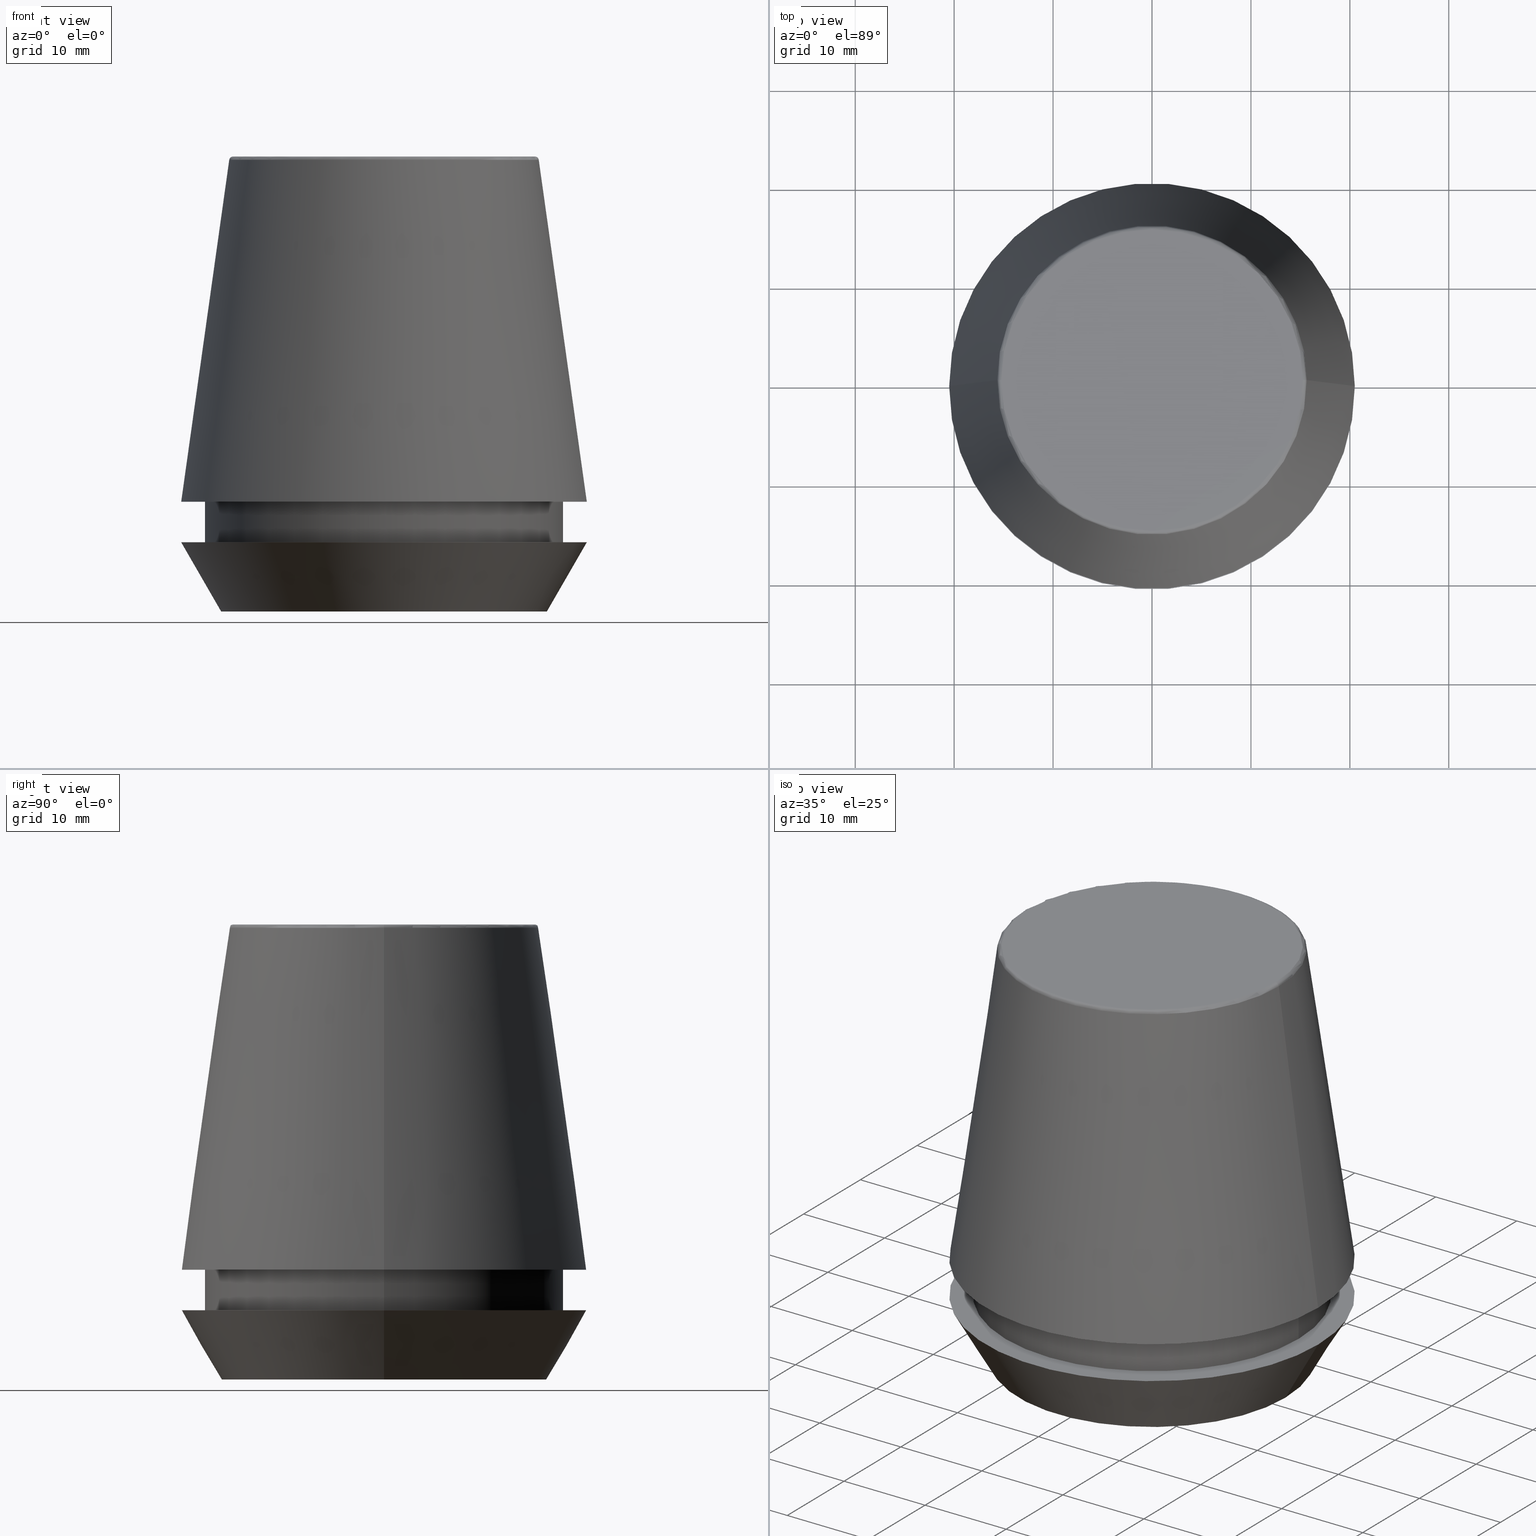
[diagram: canonical four-view strip — front | top / right | iso, engineering-drawing reading convention]
A machine part, canonical four-view strip (front | top / right | iso — engineering-drawing reading convention). The complete STEP part file that produces these views, byte-faithful:
ISO-10303-21;
HEADER;
FILE_DESCRIPTION (( 'STEP AP203' ),
    '1' );
FILE_NAME ('TAP COLLET ER 40G 12.0 X 9.0.STEP',
    '2019-04-10T04:04:46',
    ( '' ),
    ( '' ),
    'SwSTEP 2.0',
    'SolidWorks 2014',
    '' );
FILE_SCHEMA (( 'CONFIG_CONTROL_DESIGN' ));
ENDSEC;

DATA;
#1 = DIRECTION ( 'NONE',  ( 1.000000000000000000, 0.0000000000000000000, 0.0000000000000000000 ) ) ;
#2 = CIRCLE ( 'NONE', #361, 20.50000000000000000 ) ;
#3 = PERSON_AND_ORGANIZATION ( #210, #149 ) ;
#4 = CC_DESIGN_PERSON_AND_ORGANIZATION_ASSIGNMENT ( #11, #199, ( #40 ) ) ;
#5 = CARTESIAN_POINT ( 'NONE',  ( 0.0000000000000000000, 0.0000000000000000000, 0.0000000000000000000 ) ) ;
#6 = CARTESIAN_POINT ( 'NONE',  ( 16.45854811567268100, 0.0000000000000000000, 0.0000000000000000000 ) ) ;
#7 = EDGE_CURVE ( 'NONE', #333, #109, #367, .T. ) ;
#8 = VERTEX_POINT ( 'NONE', #320 ) ;
#9 = ORIENTED_EDGE ( 'NONE', *, *, #365, .F. ) ;
#10 = LINE ( 'NONE', #6, #353 ) ;
#11 = PERSON_AND_ORGANIZATION ( #210, #149 ) ;
#12 = EDGE_LOOP ( 'NONE', ( #285, #319, #337, #382 ) ) ;
#13 = EDGE_CURVE ( 'NONE', #96, #133, #349, .T. ) ;
#14 = FACE_OUTER_BOUND ( 'NONE', #97, .T. ) ;
#15 = CIRCLE ( 'NONE', #350, 20.50032537154048700 ) ;
#16 = EDGE_LOOP ( 'NONE', ( #248, #73, #206, #9 ) ) ;
#17 = CIRCLE ( 'NONE', #71, 16.45854811567268100 ) ;
#18 = CARTESIAN_POINT ( 'NONE',  ( 0.0000000000000000000, 0.0000000000000000000, 6.999999999999999100 ) ) ;
#19 = PLANE ( 'NONE',  #99 ) ;
#20 = DATE_AND_TIME ( #155, #257 ) ;
#21 = ORIENTED_EDGE ( 'NONE', *, *, #53, .T. ) ;
#22 = COORDINATED_UNIVERSAL_TIME_OFFSET ( 5, 30, .AHEAD. ) ;
#23 = FACE_BOUND ( 'NONE', #347, .T. ) ;
#24 = EDGE_LOOP ( 'NONE', ( #363, #298 ) ) ;
#25 = EDGE_CURVE ( 'NONE', #278, #140, #17, .T. ) ;
#26 = EDGE_LOOP ( 'NONE', ( #129, #372 ) ) ;
#27 = APPLICATION_CONTEXT ( 'configuration controlled 3d designs of mechanical parts and assemblies' ) ;
#28 = TOROIDAL_SURFACE ( 'NONE', #143, 15.24773554530077600, 0.3999999999999991900 ) ;
#29 = DIRECTION ( 'NONE',  ( -0.0000000000000000000, -0.0000000000000000000, 1.000000000000000000 ) ) ;
#30 = PRODUCT_DEFINITION ( 'UNKNOWN', '', #154, #82 ) ;
#31 = FACE_OUTER_BOUND ( 'NONE', #61, .T. ) ;
#32 = DIRECTION ( 'NONE',  ( 1.000000000000000000, 0.0000000000000000000, 0.0000000000000000000 ) ) ;
#33 = DIRECTION ( 'NONE',  ( 0.0000000000000000000, 0.0000000000000000000, 1.000000000000000000 ) ) ;
#34 = ORIENTED_EDGE ( 'NONE', *, *, #13, .T. ) ;
#35 = ORIENTED_EDGE ( 'NONE', *, *, #352, .T. ) ;
#36 = FACE_OUTER_BOUND ( 'NONE', #12, .T. ) ;
#37 = ADVANCED_FACE ( 'NONE', ( #66 ), #197, .T. ) ;
#38 = COORDINATED_UNIVERSAL_TIME_OFFSET ( 5, 30, .AHEAD. ) ;
#39 = ORIENTED_EDGE ( 'NONE', *, *, #375, .T. ) ;
#40 = PRODUCT ( 'TAP COLLET ER 40G 12.0 X 9.0', 'TAP COLLET ER 40G 12.0 X 9.0', '', ( #381 ) ) ;
#41 = LINE ( 'NONE', #74, #326 ) ;
#42 = ADVANCED_FACE ( 'NONE', ( #224, #357 ), #245, .F. ) ;
#43 = ADVANCED_FACE ( 'NONE', ( #178 ), #222, .T. ) ;
#44 = DIRECTION ( 'NONE',  ( 1.000000000000000000, 0.0000000000000000000, 0.0000000000000000000 ) ) ;
#45 = CALENDAR_DATE ( 2019, 10, 4 ) ;
#46 = DATE_AND_TIME ( #55, #172 ) ;
#47 = FACE_OUTER_BOUND ( 'NONE', #79, .T. ) ;
#48 = DIRECTION ( 'NONE',  ( 0.0000000000000000000, 0.0000000000000000000, -1.000000000000000000 ) ) ;
#49 = CC_DESIGN_PERSON_AND_ORGANIZATION_ASSIGNMENT ( #92, #87, ( #30 ) ) ;
#50 = AXIS2_PLACEMENT_3D ( 'NONE', #18, #217, #44 ) ;
#51 = APPROVAL_ROLE ( '' ) ;
#52 = DIRECTION ( 'NONE',  ( 0.0000000000000000000, 0.0000000000000000000, -1.000000000000000000 ) ) ;
#53 = EDGE_CURVE ( 'NONE', #109, #356, #163, .T. ) ;
#54 = APPROVAL_STATUS ( 'not_yet_approved' ) ;
#55 = CALENDAR_DATE ( 2019, 10, 4 ) ;
#56 = ORIENTED_EDGE ( 'NONE', *, *, #375, .F. ) ;
#57 = DIRECTION ( 'NONE',  ( -0.4999999999999941700, 6.123233995736694500E-017, 0.8660254037844420400 ) ) ;
#58 = AXIS2_PLACEMENT_3D ( 'NONE', #156, #354, #236 ) ;
#59 = CARTESIAN_POINT ( 'NONE',  ( -18.10000000000000500, 2.216610706456710000E-015, 46.00000000000000000 ) ) ;
#60 = ORIENTED_EDGE ( 'NONE', *, *, #240, .F. ) ;
#61 = EDGE_LOOP ( 'NONE', ( #116, #218, #21, #213 ) ) ;
#62 = DIRECTION ( 'NONE',  ( -0.0000000000000000000, -0.0000000000000000000, 1.000000000000000000 ) ) ;
#63 = EDGE_CURVE ( 'NONE', #247, #373, #208, .T. ) ;
#64 = ORIENTED_EDGE ( 'NONE', *, *, #7, .F. ) ;
#65 = EDGE_LOOP ( 'NONE', ( #306, #64, #239, #279 ) ) ;
#66 = FACE_OUTER_BOUND ( 'NONE', #65, .T. ) ;
#67 = CC_DESIGN_DATE_AND_TIME_ASSIGNMENT ( #318, #282, ( #30 ) ) ;
#68 = FACE_OUTER_BOUND ( 'NONE', #182, .T. ) ;
#69 = CIRCLE ( 'NONE', #80, 16.45854811567268100 ) ;
#70 = DIRECTION ( 'NONE',  ( 1.000000000000000000, 0.0000000000000000000, 0.0000000000000000000 ) ) ;
#71 = AXIS2_PLACEMENT_3D ( 'NONE', #5, #205, #32 ) ;
#72 = CYLINDRICAL_SURFACE ( 'NONE', #300, 18.10000000000000500 ) ;
#73 = ORIENTED_EDGE ( 'NONE', *, *, #280, .T. ) ;
#74 = CARTESIAN_POINT ( 'NONE',  ( -20.50032537154048700, 0.0000000000000000000, 11.09999999999999800 ) ) ;
#75 = ADVANCED_FACE ( 'NONE', ( #291 ), #19, .F. ) ;
#76 = AXIS2_PLACEMENT_3D ( 'NONE', #168, #329, #70 ) ;
#77 = CARTESIAN_POINT ( 'NONE',  ( 0.0000000000000000000, 0.0000000000000000000, 45.60000000000000100 ) ) ;
#78 = AXIS2_PLACEMENT_3D ( 'NONE', #294, #130, #325 ) ;
#79 = EDGE_LOOP ( 'NONE', ( #187, #170 ) ) ;
#80 = AXIS2_PLACEMENT_3D ( 'NONE', #296, #136, #327 ) ;
#81 = DIRECTION ( 'NONE',  ( 1.000000000000000000, 0.0000000000000000000, 0.0000000000000000000 ) ) ;
#82 = DESIGN_CONTEXT ( 'detailed design', #27, 'design' ) ;
#83 = CIRCLE ( 'NONE', #331, 20.50000000000000000 ) ;
#84 = AXIS2_PLACEMENT_3D ( 'NONE', #202, #351, #183 ) ;
#85 = VECTOR ( 'NONE', #263, 1000.000000000000000 ) ;
#86 = ORIENTED_EDGE ( 'NONE', *, *, #240, .T. ) ;
#87 = PERSON_AND_ORGANIZATION_ROLE ( 'creator' ) ;
#88 = CARTESIAN_POINT ( 'NONE',  ( 0.0000000000000000000, 0.0000000000000000000, 46.00000000000000000 ) ) ;
#89 = SHAPE_DEFINITION_REPRESENTATION ( #253, #215 ) ;
#90 = CIRCLE ( 'NONE', #137, 20.50032537154048700 ) ;
#91 = CARTESIAN_POINT ( 'NONE',  ( -18.10000000000000100, 2.216610706456709600E-015, 6.999999999999999100 ) ) ;
#92 = PERSON_AND_ORGANIZATION ( #210, #149 ) ;
#93 = ORIENTED_EDGE ( 'NONE', *, *, #127, .F. ) ;
#94 = AXIS2_PLACEMENT_3D ( 'NONE', #146, #228, #312 ) ;
#95 = CARTESIAN_POINT ( 'NONE',  ( 0.0000000000000000000, 0.0000000000000000000, 7.000000000000006200 ) ) ;
#96 = VERTEX_POINT ( 'NONE', #174 ) ;
#97 = EDGE_LOOP ( 'NONE', ( #370, #93 ) ) ;
#98 = EDGE_LOOP ( 'NONE', ( #364, #186, #252, #106 ) ) ;
#99 = AXIS2_PLACEMENT_3D ( 'NONE', #220, #48, #251 ) ;
#100 = EDGE_LOOP ( 'NONE', ( #35, #39 ) ) ;
#101 = CC_DESIGN_SECURITY_CLASSIFICATION ( #120, ( #154 ) ) ;
#102 = DIRECTION ( 'NONE',  ( 0.0000000000000000000, 0.0000000000000000000, -1.000000000000000000 ) ) ;
#103 = ADVANCED_FACE ( 'NONE', ( #36 ), #314, .T. ) ;
#104 = VECTOR ( 'NONE', #322, 1000.000000000000000 ) ;
#105 = AXIS2_PLACEMENT_3D ( 'NONE', #196, #204, #374 ) ;
#106 = ORIENTED_EDGE ( 'NONE', *, *, #339, .F. ) ;
#107 = DIRECTION ( 'NONE',  ( -0.0000000000000000000, -0.0000000000000000000, 1.000000000000000000 ) ) ;
#108 = DIRECTION ( 'NONE',  ( -0.0000000000000000000, -0.0000000000000000000, 1.000000000000000000 ) ) ;
#109 = VERTEX_POINT ( 'NONE', #378 ) ;
#110 = CC_DESIGN_APPROVAL ( #135, ( #30 ) ) ;
#111 = EDGE_CURVE ( 'NONE', #140, #278, #69, .T. ) ;
#112 = CARTESIAN_POINT ( 'NONE',  ( 0.0000000000000000000, 0.0000000000000000000, 46.00000000000000000 ) ) ;
#113 = APPLICATION_CONTEXT ( 'configuration controlled 3d designs of mechanical parts and assemblies' ) ;
#114 = APPROVAL_STATUS ( 'not_yet_approved' ) ;
#115 = DIRECTION ( 'NONE',  ( 1.000000000000000000, 0.0000000000000000000, 0.0000000000000000000 ) ) ;
#116 = ORIENTED_EDGE ( 'NONE', *, *, #216, .F. ) ;
#117 = AXIS2_PLACEMENT_3D ( 'NONE', #88, #283, #115 ) ;
#118 = APPROVAL_DATE_TIME ( #270, #135 ) ;
#119 = CIRCLE ( 'NONE', #78, 0.3999999999999975800 ) ;
#120 = SECURITY_CLASSIFICATION ( '', '', #179 ) ;
#121 = CARTESIAN_POINT ( 'NONE',  ( 0.0000000000000000000, 0.0000000000000000000, 45.65566924038402900 ) ) ;
#122 = CARTESIAN_POINT ( 'NONE',  ( 20.50032537154048700, 2.510565784773633700E-015, 11.09999999999999800 ) ) ;
#123 = FACE_OUTER_BOUND ( 'NONE', #98, .T. ) ;
#124 = DIRECTION ( 'NONE',  ( -0.0000000000000000000, -0.0000000000000000000, 1.000000000000000000 ) ) ;
#125 = DIRECTION ( 'NONE',  ( 1.000000000000000000, 0.0000000000000000000, 0.0000000000000000000 ) ) ;
#126 = LINE ( 'NONE', #59, #85 ) ;
#127 = EDGE_CURVE ( 'NONE', #261, #8, #90, .T. ) ;
#128 = FACE_OUTER_BOUND ( 'NONE', #16, .T. ) ;
#129 = ORIENTED_EDGE ( 'NONE', *, *, #328, .T. ) ;
#130 = DIRECTION ( 'NONE',  ( 1.224646799147353200E-016, 1.000000000000000000, 0.0000000000000000000 ) ) ;
#131 = ADVANCED_FACE ( 'NONE', ( #128 ), #134, .T. ) ;
#132 = CC_DESIGN_DATE_AND_TIME_ASSIGNMENT ( #46, #200, ( #120 ) ) ;
#133 = VERTEX_POINT ( 'NONE', #313 ) ;
#134 = CYLINDRICAL_SURFACE ( 'NONE', #192, 18.10000000000000500 ) ;
#135 = APPROVAL ( #54, 'UNSPECIFIED' ) ;
#136 = DIRECTION ( 'NONE',  ( -0.0000000000000000000, -0.0000000000000000000, 1.000000000000000000 ) ) ;
#137 = AXIS2_PLACEMENT_3D ( 'NONE', #193, #256, #81 ) ;
#138 = DIRECTION ( 'NONE',  ( -0.1391731009600587200, 0.0000000000000000000, -0.9902680687415712500 ) ) ;
#139 = CARTESIAN_POINT ( 'NONE',  ( 18.10000000000000500, 0.0000000000000000000, 46.00000000000000000 ) ) ;
#140 = VERTEX_POINT ( 'NONE', #147 ) ;
#141 = ADVANCED_FACE ( 'NONE', ( #68 ), #72, .T. ) ;
#142 = EDGE_CURVE ( 'NONE', #332, #356, #145, .T. ) ;
#143 = AXIS2_PLACEMENT_3D ( 'NONE', #241, #207, #262 ) ;
#144 = DIRECTION ( 'NONE',  ( 0.0000000000000000000, -1.000000000000000000, 0.0000000000000000000 ) ) ;
#145 = CIRCLE ( 'NONE', #117, 15.24773554530077600 ) ;
#146 = CARTESIAN_POINT ( 'NONE',  ( 0.0000000000000000000, 0.0000000000000000000, 0.0000000000000000000 ) ) ;
#147 = CARTESIAN_POINT ( 'NONE',  ( -16.45854811567268100, 2.263058382549599700E-015, 0.0000000000000000000 ) ) ;
#148 = AXIS2_PLACEMENT_3D ( 'NONE', #292, #124, #321 ) ;
#149 = ORGANIZATION ( 'UNSPECIFIED', 'UNSPECIFIED', '' ) ;
#150 = PERSON_AND_ORGANIZATION_ROLE ( 'creator' ) ;
#151 = DIRECTION ( 'NONE',  ( 0.0000000000000000000, -0.0000000000000000000, 1.000000000000000000 ) ) ;
#152 = CC_DESIGN_APPROVAL ( #162, ( #120 ) ) ;
#153 = CARTESIAN_POINT ( 'NONE',  ( 16.45854811567268100, 0.0000000000000000000, 0.0000000000000000000 ) ) ;
#154 = PRODUCT_DEFINITION_FORMATION_WITH_SPECIFIED_SOURCE ( 'ANY', '', #40, .NOT_KNOWN. ) ;
#155 = CALENDAR_DATE ( 2019, 10, 4 ) ;
#156 = CARTESIAN_POINT ( 'NONE',  ( 0.0000000000000000000, 0.0000000000000000000, 11.09999999999999800 ) ) ;
#157 = DIRECTION ( 'NONE',  ( 0.4999999999999941700, 0.0000000000000000000, 0.8660254037844420400 ) ) ;
#158 = ADVANCED_FACE ( 'NONE', ( #47 ), #231, .F. ) ;
#159 =( NAMED_UNIT ( * ) PLANE_ANGLE_UNIT ( ) SI_UNIT ( $, .RADIAN. ) );
#160 = CARTESIAN_POINT ( 'NONE',  ( 0.0000000000000000000, 20.50032537154048700, 11.09999999999999800 ) ) ;
#161 = APPROVAL ( #114, 'UNSPECIFIED' ) ;
#162 = APPROVAL ( #227, 'UNSPECIFIED' ) ;
#163 = CIRCLE ( 'NONE', #233, 0.3999999999999975800 ) ;
#164 = CIRCLE ( 'NONE', #50, 18.10000000000000100 ) ;
#165 = AXIS2_PLACEMENT_3D ( 'NONE', #276, #259, #348 ) ;
#166 = CARTESIAN_POINT ( 'NONE',  ( 0.0000000000000000000, 0.0000000000000000000, 46.00000000000000000 ) ) ;
#167 = PERSON_AND_ORGANIZATION ( #210, #149 ) ;
#168 = CARTESIAN_POINT ( 'NONE',  ( 0.0000000000000000000, 0.0000000000000000000, 0.0000000000000000000 ) ) ;
#169 = CC_DESIGN_PERSON_AND_ORGANIZATION_ASSIGNMENT ( #386, #150, ( #154 ) ) ;
#170 = ORIENTED_EDGE ( 'NONE', *, *, #111, .F. ) ;
#171 = PERSON_AND_ORGANIZATION ( #210, #149 ) ;
#172 = LOCAL_TIME ( 9, 34, 46.00000000000000000, #22 ) ;
#173 = LOCAL_TIME ( 9, 34, 46.00000000000000000, #275 ) ;
#174 = CARTESIAN_POINT ( 'NONE',  ( 18.10000000000000500, 0.0000000000000000000, 11.09999999999999800 ) ) ;
#175 = CC_DESIGN_PERSON_AND_ORGANIZATION_ASSIGNMENT ( #260, #346, ( #154 ) ) ;
#176 = DIRECTION ( 'NONE',  ( 1.000000000000000000, 0.0000000000000000000, 0.0000000000000000000 ) ) ;
#177 = APPLICATION_PROTOCOL_DEFINITION ( 'international standard', 'config_control_design', 1994, #113 ) ;
#178 = FACE_OUTER_BOUND ( 'NONE', #376, .T. ) ;
#179 = SECURITY_CLASSIFICATION_LEVEL ( 'unclassified' ) ;
#180 = CC_DESIGN_APPROVAL ( #161, ( #154 ) ) ;
#181 = CARTESIAN_POINT ( 'NONE',  ( -16.45854811567268100, 2.015590826847124800E-015, 0.0000000000000000000 ) ) ;
#182 = EDGE_LOOP ( 'NONE', ( #305, #338, #226, #60 ) ) ;
#183 = DIRECTION ( 'NONE',  ( 1.000000000000000000, 0.0000000000000000000, 0.0000000000000000000 ) ) ;
#184 = ADVANCED_FACE ( 'NONE', ( #123 ), #323, .T. ) ;
#185 = CARTESIAN_POINT ( 'NONE',  ( 18.10000000000000100, 0.0000000000000000000, 6.999999999999999100 ) ) ;
#186 = ORIENTED_EDGE ( 'NONE', *, *, #295, .T. ) ;
#187 = ORIENTED_EDGE ( 'NONE', *, *, #25, .F. ) ;
#188 = ORIENTED_EDGE ( 'NONE', *, *, #111, .T. ) ;
#189 = EDGE_CURVE ( 'NONE', #109, #333, #334, .T. ) ;
#190 = DIRECTION ( 'NONE',  ( 1.000000000000000000, 0.0000000000000000000, 0.0000000000000000000 ) ) ;
#191 = ORIENTED_EDGE ( 'NONE', *, *, #377, .T. ) ;
#192 = AXIS2_PLACEMENT_3D ( 'NONE', #166, #366, #281 ) ;
#193 = CARTESIAN_POINT ( 'NONE',  ( 0.0000000000000000000, 0.0000000000000000000, 11.09999999999999800 ) ) ;
#194 = APPROVAL_PERSON_ORGANIZATION ( #167, #161, #315 ) ;
#195 = ORIENTED_EDGE ( 'NONE', *, *, #25, .T. ) ;
#196 = CARTESIAN_POINT ( 'NONE',  ( 0.0000000000000000000, 0.0000000000000000000, 6.999999999999999100 ) ) ;
#197 = CONICAL_SURFACE ( 'NONE', #58, 20.50032537154048700, 0.1396263401595396200 ) ;
#198 = DIRECTION ( 'NONE',  ( 1.000000000000000000, 0.0000000000000000000, 0.0000000000000000000 ) ) ;
#199 = PERSON_AND_ORGANIZATION_ROLE ( 'design_owner' ) ;
#200 = DATE_TIME_ROLE ( 'classification_date' ) ;
#201 = LINE ( 'NONE', #290, #284 ) ;
#202 = CARTESIAN_POINT ( 'NONE',  ( 0.0000000000000000000, 0.0000000000000000000, 11.09999999999999800 ) ) ;
#203 = CARTESIAN_POINT ( 'NONE',  ( 0.0000000000000000000, 0.0000000000000000000, 11.09999999999999800 ) ) ;
#204 = DIRECTION ( 'NONE',  ( -0.0000000000000000000, -0.0000000000000000000, 1.000000000000000000 ) ) ;
#205 = DIRECTION ( 'NONE',  ( -0.0000000000000000000, -0.0000000000000000000, 1.000000000000000000 ) ) ;
#206 = ORIENTED_EDGE ( 'NONE', *, *, #13, .F. ) ;
#207 = DIRECTION ( 'NONE',  ( -0.0000000000000000000, -0.0000000000000000000, 1.000000000000000000 ) ) ;
#208 = CIRCLE ( 'NONE', #105, 18.10000000000000100 ) ;
#209 = MANIFOLD_SOLID_BREP ( 'Revolve1', #219 ) ;
#210 = PERSON ( 'UNSPECIFIED', 'UNSPECIFIED', 'UNSPECIFIED', ('UNSPECIFIED'), ('UNSPECIFIED'), ('UNSPECIFIED') ) ;
#211 = CC_DESIGN_PERSON_AND_ORGANIZATION_ASSIGNMENT ( #171, #383, ( #120 ) ) ;
#212 = ADVANCED_FACE ( 'NONE', ( #264 ), #301, .T. ) ;
#213 = ORIENTED_EDGE ( 'NONE', *, *, #142, .F. ) ;
#214 = EDGE_CURVE ( 'NONE', #140, #271, #255, .T. ) ;
#215 = ADVANCED_BREP_SHAPE_REPRESENTATION ( 'TAP COLLET ER 40G 12.0 X 9.0', ( #209, #342 ), #268 ) ;
#216 = EDGE_CURVE ( 'NONE', #333, #332, #119, .T. ) ;
#217 = DIRECTION ( 'NONE',  ( -0.0000000000000000000, -0.0000000000000000000, 1.000000000000000000 ) ) ;
#218 = ORIENTED_EDGE ( 'NONE', *, *, #7, .T. ) ;
#219 = CLOSED_SHELL ( 'NONE', ( #103, #184, #131, #212, #158, #43, #42, #141, #221, #37, #225, #75 ) ) ;
#220 = CARTESIAN_POINT ( 'NONE',  ( 0.0000000000000000000, 15.24773554530077600, 46.00000000000000000 ) ) ;
#221 = ADVANCED_FACE ( 'NONE', ( #14, #23 ), #385, .F. ) ;
#222 = CONICAL_SURFACE ( 'NONE', #76, 16.45854811567268100, 0.5235987755982921500 ) ;
#223 = EDGE_CURVE ( 'NONE', #8, #261, #15, .T. ) ;
#224 = FACE_BOUND ( 'NONE', #24, .T. ) ;
#225 = ADVANCED_FACE ( 'NONE', ( #31 ), #28, .T. ) ;
#226 = ORIENTED_EDGE ( 'NONE', *, *, #365, .T. ) ;
#227 = APPROVAL_STATUS ( 'not_yet_approved' ) ;
#228 = DIRECTION ( 'NONE',  ( -0.0000000000000000000, -0.0000000000000000000, 1.000000000000000000 ) ) ;
#229 = APPLICATION_PROTOCOL_DEFINITION ( 'international standard', 'config_control_design', 1994, #27 ) ;
#230 = DATE_AND_TIME ( #45, #244 ) ;
#231 = PLANE ( 'NONE',  #277 ) ;
#232 = UNCERTAINTY_MEASURE_WITH_UNIT (LENGTH_MEASURE( 1.000000000000000100E-005 ), #324, 'distance_accuracy_value', 'NONE');
#233 = AXIS2_PLACEMENT_3D ( 'NONE', #311, #144, #340 ) ;
#234 = DIRECTION ( 'NONE',  ( 1.000000000000000000, 0.0000000000000000000, 0.0000000000000000000 ) ) ;
#235 = DIRECTION ( 'NONE',  ( 0.1391731009600587200, 1.704378926181473400E-017, -0.9902680687415712500 ) ) ;
#236 = DIRECTION ( 'NONE',  ( -1.000000000000000000, 0.0000000000000000000, 0.0000000000000000000 ) ) ;
#237 = CARTESIAN_POINT ( 'NONE',  ( 0.0000000000000000000, 0.0000000000000000000, 7.000000000000006200 ) ) ;
#238 = AXIS2_PLACEMENT_3D ( 'NONE', #160, #359, #190 ) ;
#239 = ORIENTED_EDGE ( 'NONE', *, *, #339, .T. ) ;
#240 = EDGE_CURVE ( 'NONE', #133, #96, #368, .T. ) ;
#241 = CARTESIAN_POINT ( 'NONE',  ( 0.0000000000000000000, 0.0000000000000000000, 45.60000000000000100 ) ) ;
#242 = PERSON_AND_ORGANIZATION ( #210, #149 ) ;
#243 = APPROVAL_PERSON_ORGANIZATION ( #242, #162, #51 ) ;
#244 = LOCAL_TIME ( 9, 34, 46.00000000000000000, #38 ) ;
#245 = PLANE ( 'NONE',  #273 ) ;
#246 = CALENDAR_DATE ( 2019, 10, 4 ) ;
#247 = VERTEX_POINT ( 'NONE', #91 ) ;
#248 = ORIENTED_EDGE ( 'NONE', *, *, #289, .T. ) ;
#249 = CARTESIAN_POINT ( 'NONE',  ( 20.50000000000000000, 0.0000000000000000000, 7.000000000000006200 ) ) ;
#250 = AXIS2_PLACEMENT_3D ( 'NONE', #77, #108, #309 ) ;
#251 = DIRECTION ( 'NONE',  ( -1.000000000000000000, 0.0000000000000000000, -0.0000000000000000000 ) ) ;
#252 = ORIENTED_EDGE ( 'NONE', *, *, #127, .T. ) ;
#253 = PRODUCT_DEFINITION_SHAPE ( 'NONE', 'NONE',  #30 ) ;
#254 = DIRECTION ( 'NONE',  ( -1.000000000000000000, 0.0000000000000000000, 0.0000000000000000000 ) ) ;
#255 = LINE ( 'NONE', #181, #302 ) ;
#256 = DIRECTION ( 'NONE',  ( -0.0000000000000000000, -0.0000000000000000000, 1.000000000000000000 ) ) ;
#257 = LOCAL_TIME ( 9, 34, 46.00000000000000000, #379 ) ;
#258 = APPROVAL_ROLE ( '' ) ;
#259 = DIRECTION ( 'NONE',  ( -0.0000000000000000000, -0.0000000000000000000, 1.000000000000000000 ) ) ;
#260 = PERSON_AND_ORGANIZATION ( #210, #149 ) ;
#261 = VERTEX_POINT ( 'NONE', #122 ) ;
#262 = DIRECTION ( 'NONE',  ( 1.000000000000000000, 0.0000000000000000000, 0.0000000000000000000 ) ) ;
#263 = DIRECTION ( 'NONE',  ( -0.0000000000000000000, -0.0000000000000000000, 1.000000000000000000 ) ) ;
#264 = FACE_OUTER_BOUND ( 'NONE', #335, .T. ) ;
#265 = DIRECTION ( 'NONE',  ( 1.000000000000000000, 0.0000000000000000000, 0.0000000000000000000 ) ) ;
#266 = APPROVAL_PERSON_ORGANIZATION ( #3, #135, #258 ) ;
#267 = LINE ( 'NONE', #139, #104 ) ;
#268 =( GEOMETRIC_REPRESENTATION_CONTEXT ( 3 ) GLOBAL_UNCERTAINTY_ASSIGNED_CONTEXT ( ( #232 ) ) GLOBAL_UNIT_ASSIGNED_CONTEXT ( ( #324, #159, #358 ) ) REPRESENTATION_CONTEXT ( 'NONE', 'WORKASPACE' ) );
#269 = CARTESIAN_POINT ( 'NONE',  ( 0.0000000000000000000, 20.50000000000000000, 7.000000000000002700 ) ) ;
#270 = DATE_AND_TIME ( #246, #362 ) ;
#271 = VERTEX_POINT ( 'NONE', #287 ) ;
#272 = CARTESIAN_POINT ( 'NONE',  ( 0.0000000000000000000, 0.0000000000000000000, 46.00000000000000000 ) ) ;
#273 = AXIS2_PLACEMENT_3D ( 'NONE', #269, #102, #299 ) ;
#274 = CARTESIAN_POINT ( 'NONE',  ( -15.24773554530077600, 1.891563625393435400E-015, 46.00000000000000000 ) ) ;
#275 = COORDINATED_UNIVERSAL_TIME_OFFSET ( 5, 30, .AHEAD. ) ;
#276 = CARTESIAN_POINT ( 'NONE',  ( 0.0000000000000000000, 0.0000000000000000000, 45.65566924038402900 ) ) ;
#277 = AXIS2_PLACEMENT_3D ( 'NONE', #316, #151, #176 ) ;
#278 = VERTEX_POINT ( 'NONE', #153 ) ;
#279 = ORIENTED_EDGE ( 'NONE', *, *, #223, .T. ) ;
#280 = EDGE_CURVE ( 'NONE', #247, #133, #126, .T. ) ;
#281 = DIRECTION ( 'NONE',  ( 1.000000000000000000, 0.0000000000000000000, 0.0000000000000000000 ) ) ;
#282 = DATE_TIME_ROLE ( 'creation_date' ) ;
#283 = DIRECTION ( 'NONE',  ( -0.0000000000000000000, -0.0000000000000000000, 1.000000000000000000 ) ) ;
#284 = VECTOR ( 'NONE', #235, 1000.000000000000000 ) ;
#285 = ORIENTED_EDGE ( 'NONE', *, *, #189, .T. ) ;
#286 = DIRECTION ( 'NONE',  ( -0.0000000000000000000, -0.0000000000000000000, 1.000000000000000000 ) ) ;
#287 = CARTESIAN_POINT ( 'NONE',  ( -20.50000000000000000, 2.510525938252074100E-015, 7.000000000000006200 ) ) ;
#288 = COORDINATED_UNIVERSAL_TIME_OFFSET ( 5, 30, .AHEAD. ) ;
#289 = EDGE_CURVE ( 'NONE', #373, #247, #164, .T. ) ;
#290 = CARTESIAN_POINT ( 'NONE',  ( 20.50032537154048700, 2.510565784773633700E-015, 11.09999999999999800 ) ) ;
#291 = FACE_OUTER_BOUND ( 'NONE', #26, .T. ) ;
#292 = CARTESIAN_POINT ( 'NONE',  ( 0.0000000000000000000, 0.0000000000000000000, 11.09999999999999800 ) ) ;
#293 = DIRECTION ( 'NONE',  ( -0.0000000000000000000, -0.0000000000000000000, 1.000000000000000000 ) ) ;
#294 = CARTESIAN_POINT ( 'NONE',  ( -15.24773554530077600, 1.867309052979791600E-015, 45.60000000000000100 ) ) ;
#295 = EDGE_CURVE ( 'NONE', #109, #261, #201, .T. ) ;
#296 = CARTESIAN_POINT ( 'NONE',  ( 0.0000000000000000000, 0.0000000000000000000, 0.0000000000000000000 ) ) ;
#297 = CALENDAR_DATE ( 2019, 10, 4 ) ;
#298 = ORIENTED_EDGE ( 'NONE', *, *, #63, .F. ) ;
#299 = DIRECTION ( 'NONE',  ( -1.000000000000000000, 0.0000000000000000000, -0.0000000000000000000 ) ) ;
#300 = AXIS2_PLACEMENT_3D ( 'NONE', #112, #344, #198 ) ;
#301 = CONICAL_SURFACE ( 'NONE', #94, 16.45854811567268100, 0.5235987755982921500 ) ;
#302 = VECTOR ( 'NONE', #57, 1000.000000000000000 ) ;
#303 = DIRECTION ( 'NONE',  ( 1.000000000000000000, 0.0000000000000000000, 0.0000000000000000000 ) ) ;
#304 = VERTEX_POINT ( 'NONE', #249 ) ;
#305 = ORIENTED_EDGE ( 'NONE', *, *, #280, .F. ) ;
#306 = ORIENTED_EDGE ( 'NONE', *, *, #295, .F. ) ;
#307 = CARTESIAN_POINT ( 'NONE',  ( -15.64384277279740400, 0.0000000000000000000, 45.65566924038402900 ) ) ;
#308 = AXIS2_PLACEMENT_3D ( 'NONE', #369, #52, #254 ) ;
#309 = DIRECTION ( 'NONE',  ( 1.000000000000000000, 0.0000000000000000000, 0.0000000000000000000 ) ) ;
#310 = APPROVAL_DATE_TIME ( #20, #161 ) ;
#311 = CARTESIAN_POINT ( 'NONE',  ( 15.24773554530077600, 0.0000000000000000000, 45.60000000000000100 ) ) ;
#312 = DIRECTION ( 'NONE',  ( 1.000000000000000000, 0.0000000000000000000, 0.0000000000000000000 ) ) ;
#313 = CARTESIAN_POINT ( 'NONE',  ( -18.10000000000000500, 2.216610706456710000E-015, 11.09999999999999800 ) ) ;
#314 = TOROIDAL_SURFACE ( 'NONE', #250, 15.24773554530077600, 0.3999999999999991900 ) ;
#315 = APPROVAL_ROLE ( '' ) ;
#316 = CARTESIAN_POINT ( 'NONE',  ( 0.0000000000000000000, 0.0000000000000000000, 0.0000000000000000000 ) ) ;
#317 = AXIS2_PLACEMENT_3D ( 'NONE', #121, #286, #1 ) ;
#318 = DATE_AND_TIME ( #297, #173 ) ;
#319 = ORIENTED_EDGE ( 'NONE', *, *, #216, .T. ) ;
#320 = CARTESIAN_POINT ( 'NONE',  ( -20.50032537154048700, 0.0000000000000000000, 11.09999999999999800 ) ) ;
#321 = DIRECTION ( 'NONE',  ( 1.000000000000000000, 0.0000000000000000000, 0.0000000000000000000 ) ) ;
#322 = DIRECTION ( 'NONE',  ( -0.0000000000000000000, -0.0000000000000000000, 1.000000000000000000 ) ) ;
#323 = CONICAL_SURFACE ( 'NONE', #308, 20.50032537154048700, 0.1396263401595396200 ) ;
#324 =( LENGTH_UNIT ( ) NAMED_UNIT ( * ) SI_UNIT ( .MILLI., .METRE. ) );
#325 = DIRECTION ( 'NONE',  ( -1.000000000000000000, 1.224646799147353900E-016, 0.0000000000000000000 ) ) ;
#326 = VECTOR ( 'NONE', #138, 1000.000000000000000 ) ;
#327 = DIRECTION ( 'NONE',  ( 1.000000000000000000, 0.0000000000000000000, 0.0000000000000000000 ) ) ;
#328 = EDGE_CURVE ( 'NONE', #356, #332, #330, .T. ) ;
#329 = DIRECTION ( 'NONE',  ( -0.0000000000000000000, -0.0000000000000000000, 1.000000000000000000 ) ) ;
#330 = CIRCLE ( 'NONE', #384, 15.24773554530077600 ) ;
#331 = AXIS2_PLACEMENT_3D ( 'NONE', #237, #62, #265 ) ;
#332 = VERTEX_POINT ( 'NONE', #274 ) ;
#333 = VERTEX_POINT ( 'NONE', #307 ) ;
#334 = CIRCLE ( 'NONE', #165, 15.64384277279740400 ) ;
#335 = EDGE_LOOP ( 'NONE', ( #195, #360, #336, #343 ) ) ;
#336 = ORIENTED_EDGE ( 'NONE', *, *, #352, .F. ) ;
#337 = ORIENTED_EDGE ( 'NONE', *, *, #328, .F. ) ;
#338 = ORIENTED_EDGE ( 'NONE', *, *, #63, .T. ) ;
#339 = EDGE_CURVE ( 'NONE', #333, #8, #41, .T. ) ;
#340 = DIRECTION ( 'NONE',  ( 0.0000000000000000000, 0.0000000000000000000, -1.000000000000000000 ) ) ;
#341 = APPROVAL_DATE_TIME ( #230, #162 ) ;
#342 = AXIS2_PLACEMENT_3D ( 'NONE', #355, #33, #345 ) ;
#343 = ORIENTED_EDGE ( 'NONE', *, *, #377, .F. ) ;
#344 = DIRECTION ( 'NONE',  ( -0.0000000000000000000, -0.0000000000000000000, 1.000000000000000000 ) ) ;
#345 = DIRECTION ( 'NONE',  ( 1.000000000000000000, 0.0000000000000000000, 0.0000000000000000000 ) ) ;
#346 = PERSON_AND_ORGANIZATION_ROLE ( 'design_supplier' ) ;
#347 = EDGE_LOOP ( 'NONE', ( #34, #86 ) ) ;
#348 = DIRECTION ( 'NONE',  ( 1.000000000000000000, 0.0000000000000000000, 0.0000000000000000000 ) ) ;
#349 = CIRCLE ( 'NONE', #148, 18.10000000000000500 ) ;
#350 = AXIS2_PLACEMENT_3D ( 'NONE', #203, #29, #234 ) ;
#351 = DIRECTION ( 'NONE',  ( -0.0000000000000000000, -0.0000000000000000000, 1.000000000000000000 ) ) ;
#352 = EDGE_CURVE ( 'NONE', #304, #271, #2, .T. ) ;
#353 = VECTOR ( 'NONE', #157, 1000.000000000000000 ) ;
#354 = DIRECTION ( 'NONE',  ( 0.0000000000000000000, 0.0000000000000000000, -1.000000000000000000 ) ) ;
#355 = CARTESIAN_POINT ( 'NONE',  ( 0.0000000000000000000, 0.0000000000000000000, 0.0000000000000000000 ) ) ;
#356 = VERTEX_POINT ( 'NONE', #371 ) ;
#357 = FACE_OUTER_BOUND ( 'NONE', #100, .T. ) ;
#358 =( NAMED_UNIT ( * ) SI_UNIT ( $, .STERADIAN. ) SOLID_ANGLE_UNIT ( ) );
#359 = DIRECTION ( 'NONE',  ( 0.0000000000000000000, -0.0000000000000000000, 1.000000000000000000 ) ) ;
#360 = ORIENTED_EDGE ( 'NONE', *, *, #214, .T. ) ;
#361 = AXIS2_PLACEMENT_3D ( 'NONE', #95, #293, #125 ) ;
#362 = LOCAL_TIME ( 9, 34, 46.00000000000000000, #288 ) ;
#363 = ORIENTED_EDGE ( 'NONE', *, *, #289, .F. ) ;
#364 = ORIENTED_EDGE ( 'NONE', *, *, #189, .F. ) ;
#365 = EDGE_CURVE ( 'NONE', #373, #96, #267, .T. ) ;
#366 = DIRECTION ( 'NONE',  ( -0.0000000000000000000, -0.0000000000000000000, 1.000000000000000000 ) ) ;
#367 = CIRCLE ( 'NONE', #317, 15.64384277279740400 ) ;
#368 = CIRCLE ( 'NONE', #84, 18.10000000000000500 ) ;
#369 = CARTESIAN_POINT ( 'NONE',  ( 0.0000000000000000000, 0.0000000000000000000, 11.09999999999999800 ) ) ;
#370 = ORIENTED_EDGE ( 'NONE', *, *, #223, .F. ) ;
#371 = CARTESIAN_POINT ( 'NONE',  ( 15.24773554530077600, 0.0000000000000000000, 46.00000000000000000 ) ) ;
#372 = ORIENTED_EDGE ( 'NONE', *, *, #142, .T. ) ;
#373 = VERTEX_POINT ( 'NONE', #185 ) ;
#374 = DIRECTION ( 'NONE',  ( 1.000000000000000000, 0.0000000000000000000, 0.0000000000000000000 ) ) ;
#375 = EDGE_CURVE ( 'NONE', #271, #304, #83, .T. ) ;
#376 = EDGE_LOOP ( 'NONE', ( #380, #188, #191, #56 ) ) ;
#377 = EDGE_CURVE ( 'NONE', #278, #304, #10, .T. ) ;
#378 = CARTESIAN_POINT ( 'NONE',  ( 15.64384277279740400, 2.213191991290356800E-015, 45.65566924038402900 ) ) ;
#379 = COORDINATED_UNIVERSAL_TIME_OFFSET ( 5, 30, .AHEAD. ) ;
#380 = ORIENTED_EDGE ( 'NONE', *, *, #214, .F. ) ;
#381 = MECHANICAL_CONTEXT ( 'NONE', #113, 'mechanical' ) ;
#382 = ORIENTED_EDGE ( 'NONE', *, *, #53, .F. ) ;
#383 = PERSON_AND_ORGANIZATION_ROLE ( 'classification_officer' ) ;
#384 = AXIS2_PLACEMENT_3D ( 'NONE', #272, #107, #303 ) ;
#385 = PLANE ( 'NONE',  #238 ) ;
#386 = PERSON_AND_ORGANIZATION ( #210, #149 ) ;
#387 = PRODUCT_RELATED_PRODUCT_CATEGORY ( 'detail', '', ( #40 ) ) ;
ENDSEC;
END-ISO-10303-21;
